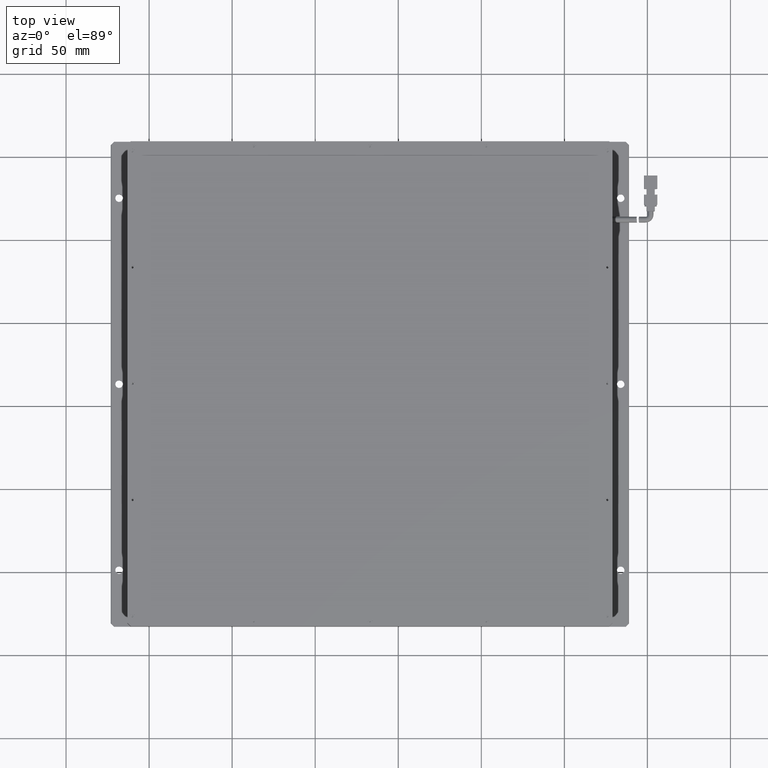
[diagram: clean part render]
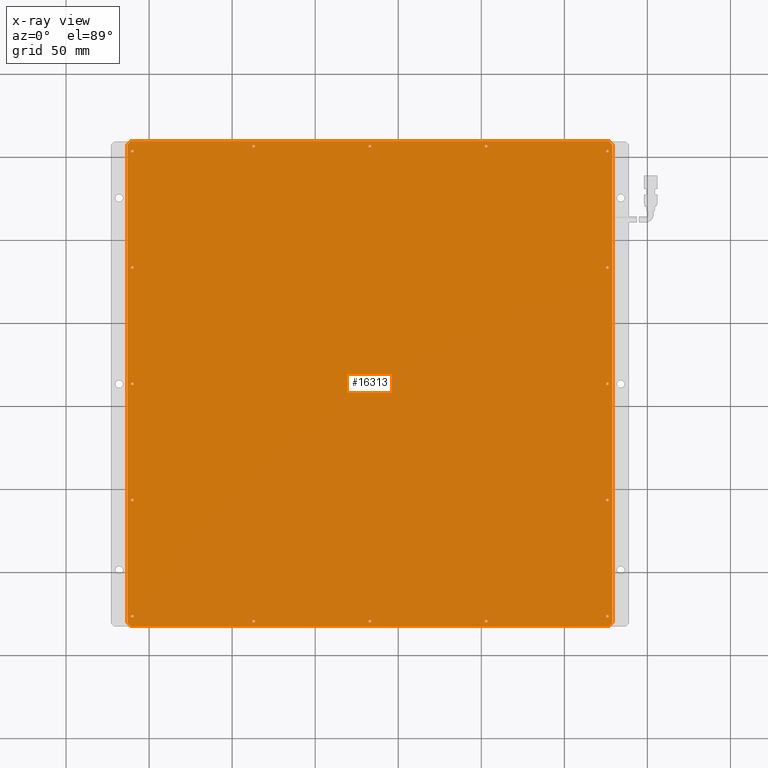
[diagram: x-ray — body ghosted, one internal face saturated and labeled with its STEP entity id]
A machine part, top view, then the same camera in x-ray: the body is ghosted and one INTERNAL B-rep face — a face not visible from any outside direction — is saturated and labeled: STEP entity #16313.
In plain terms, the highlighted planar face has unit normal (0, 0, 1).
Its self-contained STEP definition (entity closure, byte-faithful):
#26 = EDGE_LOOP ( 'NONE', ( #9681, #22525 ) ) ;
#43 = DIRECTION ( 'NONE',  ( -0.0000000000000000000, -0.0000000000000000000, -1.000000000000000000 ) ) ;
#68 = EDGE_CURVE ( 'NONE', #13888, #15676, #18069, .T. ) ;
#209 = LINE ( 'NONE', #16080, #4534 ) ;
#238 = VECTOR ( 'NONE', #13005, 1000.000000000000100 ) ;
#254 = DIRECTION ( 'NONE',  ( -0.0000000000000000000, -0.0000000000000000000, -1.000000000000000000 ) ) ;
#302 = CARTESIAN_POINT ( 'NONE',  ( 178.9193228736581300, -132.7301954307733900, 6.999999999971805700 ) ) ;
#313 = FACE_BOUND ( 'NONE', #9942, .T. ) ;
#330 = CIRCLE ( 'NONE', #23418, 0.7500000000000006700 ) ;
#439 = DIRECTION ( 'NONE',  ( -0.0000000000000000000, -0.0000000000000000000, -1.000000000000000000 ) ) ;
#550 = VECTOR ( 'NONE', #13134, 1000.000000000000000 ) ;
#608 = AXIS2_PLACEMENT_3D ( 'NONE', #10793, #7192, #12552 ) ;
#639 = ORIENTED_EDGE ( 'NONE', *, *, #8146, .F. ) ;
#769 = EDGE_LOOP ( 'NONE', ( #11752, #7807 ) ) ;
#825 = CARTESIAN_POINT ( 'NONE',  ( -109.3306771263418700, -56.73019543077345600, 6.999999999971803900 ) ) ;
#938 = EDGE_CURVE ( 'NONE', #4324, #15601, #13654, .T. ) ;
#1004 = EDGE_CURVE ( 'NONE', #16406, #22865, #18264, .T. ) ;
#1015 = VERTEX_POINT ( 'NONE', #16196 ) ;
#1020 = DIRECTION ( 'NONE',  ( 0.7071067811865328100, 0.7071067811865622300, 0.0000000000000000000 ) ) ;
#1049 = DIRECTION ( 'NONE',  ( 1.000000000000000000, 0.0000000000000000000, 0.0000000000000000000 ) ) ;
#1238 = CARTESIAN_POINT ( 'NONE',  ( -110.0806771263418700, -56.73019543077345600, 6.999999999971803900 ) ) ;
#1262 = ORIENTED_EDGE ( 'NONE', *, *, #20556, .F. ) ;
#1274 = DIRECTION ( 'NONE',  ( -0.0000000000000000000, -0.0000000000000000000, -1.000000000000000000 ) ) ;
#1481 = ORIENTED_EDGE ( 'NONE', *, *, #8666, .F. ) ;
#1625 = AXIS2_PLACEMENT_3D ( 'NONE', #18553, #11176, #1944 ) ;
#1819 = ORIENTED_EDGE ( 'NONE', *, *, #14648, .F. ) ;
#1944 = DIRECTION ( 'NONE',  ( 1.000000000000000000, 0.0000000000000000000, 0.0000000000000000000 ) ) ;
#1953 = DIRECTION ( 'NONE',  ( 1.000000000000000000, 0.0000000000000000000, 0.0000000000000000000 ) ) ;
#2010 = EDGE_CURVE ( 'NONE', #22823, #15531, #3099, .T. ) ;
#2023 = VERTEX_POINT ( 'NONE', #5647 ) ;
#2097 = CARTESIAN_POINT ( 'NONE',  ( 102.9193228736581000, -129.7301954307734500, 6.999999999971803900 ) ) ;
#2103 = AXIS2_PLACEMENT_3D ( 'NONE', #7669, #3665, #17119 ) ;
#2145 = VERTEX_POINT ( 'NONE', #22645 ) ;
#2367 = CARTESIAN_POINT ( 'NONE',  ( -111.0806771263418700, 159.2698045692265500, 6.999999999971805700 ) ) ;
#2406 = DIRECTION ( 'NONE',  ( -0.0000000000000000000, -0.0000000000000000000, -1.000000000000000000 ) ) ;
#2661 = VERTEX_POINT ( 'NONE', #3936 ) ;
#2725 = CIRCLE ( 'NONE', #5940, 0.7500000000000006700 ) ;
#2735 = ORIENTED_EDGE ( 'NONE', *, *, #11914, .F. ) ;
#2751 = CARTESIAN_POINT ( 'NONE',  ( 33.66932287365813200, 156.2698045692266100, 6.999999999971803900 ) ) ;
#2824 = CARTESIAN_POINT ( 'NONE',  ( 175.1693228736581600, 83.26980456922656500, 6.999999999971803900 ) ) ;
#2847 = EDGE_CURVE ( 'NONE', #14715, #20794, #19095, .T. ) ;
#2852 = LINE ( 'NONE', #18788, #238 ) ;
#2878 = EDGE_CURVE ( 'NONE', #8423, #17814, #2725, .T. ) ;
#2895 = DIRECTION ( 'NONE',  ( 1.000000000000000000, 0.0000000000000000000, 0.0000000000000000000 ) ) ;
#2919 = ORIENTED_EDGE ( 'NONE', *, *, #11312, .F. ) ;
#2942 = DIRECTION ( 'NONE',  ( 1.000000000000000000, 0.0000000000000000000, 0.0000000000000000000 ) ) ;
#3070 = ORIENTED_EDGE ( 'NONE', *, *, #10823, .F. ) ;
#3099 = CIRCLE ( 'NONE', #12815, 0.7500000000000284200 ) ;
#3140 = CARTESIAN_POINT ( 'NONE',  ( 176.6693228736581600, 153.2698045692265800, 6.999999999971803900 ) ) ;
#3208 = DIRECTION ( 'NONE',  ( 1.000000000000000000, 0.0000000000000000000, 0.0000000000000000000 ) ) ;
#3290 = ORIENTED_EDGE ( 'NONE', *, *, #1004, .F. ) ;
#3397 = VERTEX_POINT ( 'NONE', #18284 ) ;
#3427 = DIRECTION ( 'NONE',  ( 1.000000000000000000, 0.0000000000000000000, 0.0000000000000000000 ) ) ;
#3476 = FACE_BOUND ( 'NONE', #10006, .T. ) ;
#3513 = ORIENTED_EDGE ( 'NONE', *, *, #3989, .F. ) ;
#3593 = VERTEX_POINT ( 'NONE', #16896 ) ;
#3665 = DIRECTION ( 'NONE',  ( -0.0000000000000000000, -0.0000000000000000000, -1.000000000000000000 ) ) ;
#3909 = ORIENTED_EDGE ( 'NONE', *, *, #6841, .F. ) ;
#3916 = CARTESIAN_POINT ( 'NONE',  ( -36.33067712634193200, -129.7301954307734500, 6.999999999971803900 ) ) ;
#3936 = CARTESIAN_POINT ( 'NONE',  ( 178.9193228736581600, 157.2698045692265800, 6.999999999971805700 ) ) ;
#3941 = AXIS2_PLACEMENT_3D ( 'NONE', #15551, #4732, #6426 ) ;
#3972 = CARTESIAN_POINT ( 'NONE',  ( 102.9193228736581000, -129.7301954307734500, 6.999999999971803900 ) ) ;
#3989 = EDGE_CURVE ( 'NONE', #22865, #16406, #19323, .T. ) ;
#4075 = VERTEX_POINT ( 'NONE', #7739 ) ;
#4090 = ORIENTED_EDGE ( 'NONE', *, *, #14831, .F. ) ;
#4232 = AXIS2_PLACEMENT_3D ( 'NONE', #2097, #13144, #15146 ) ;
#4324 = VERTEX_POINT ( 'NONE', #9709 ) ;
#4383 = EDGE_LOOP ( 'NONE', ( #2735, #3909 ) ) ;
#4426 = CARTESIAN_POINT ( 'NONE',  ( 175.9193228736581300, -56.73019543077345600, 6.999999999971803900 ) ) ;
#4451 = CARTESIAN_POINT ( 'NONE',  ( 32.16932287365807500, -129.7301954307734500, 6.999999999971803900 ) ) ;
#4534 = VECTOR ( 'NONE', #19801, 1000.000000000000000 ) ;
#4574 = VERTEX_POINT ( 'NONE', #10450 ) ;
#4626 = AXIS2_PLACEMENT_3D ( 'NONE', #23271, #15784, #13855 ) ;
#4705 = EDGE_CURVE ( 'NONE', #21275, #23365, #19850, .T. ) ;
#4732 = DIRECTION ( 'NONE',  ( -0.0000000000000000000, -0.0000000000000000000, -1.000000000000000000 ) ) ;
#4766 = EDGE_LOOP ( 'NONE', ( #17138, #13455 ) ) ;
#4801 = CARTESIAN_POINT ( 'NONE',  ( -110.0806771263418700, 83.26980456922656500, 6.999999999971803900 ) ) ;
#4808 = ORIENTED_EDGE ( 'NONE', *, *, #8546, .F. ) ;
#4855 = VERTEX_POINT ( 'NONE', #20262 ) ;
#4858 = CARTESIAN_POINT ( 'NONE',  ( 102.1693228736581000, -129.7301954307734500, 6.999999999971803900 ) ) ;
#4946 = CIRCLE ( 'NONE', #4626, 0.7500000000000006700 ) ;
#4957 = ORIENTED_EDGE ( 'NONE', *, *, #7923, .F. ) ;
#5050 = EDGE_CURVE ( 'NONE', #6667, #2661, #13156, .T. ) ;
#5055 = DIRECTION ( 'NONE',  ( -0.0000000000000000000, -0.0000000000000000000, -1.000000000000000000 ) ) ;
#5192 = FACE_OUTER_BOUND ( 'NONE', #8081, .T. ) ;
#5347 = CARTESIAN_POINT ( 'NONE',  ( -37.83067712634193200, -129.7301954307734500, 6.999999999971803900 ) ) ;
#5374 = CARTESIAN_POINT ( 'NONE',  ( -110.8306771263418700, -126.7301954307734600, 6.999999999971803900 ) ) ;
#5526 = DIRECTION ( 'NONE',  ( 1.000000000000000000, 0.0000000000000000000, 0.0000000000000000000 ) ) ;
#5647 = CARTESIAN_POINT ( 'NONE',  ( 176.9193228736581600, -132.7301954307733600, 6.999999999971805700 ) ) ;
#5820 = DIRECTION ( 'NONE',  ( 1.000000000000000000, 0.0000000000000000000, 0.0000000000000000000 ) ) ;
#5856 = DIRECTION ( 'NONE',  ( 1.000000000000000000, 0.0000000000000000000, 0.0000000000000000000 ) ) ;
#5940 = AXIS2_PLACEMENT_3D ( 'NONE', #4801, #14006, #2895 ) ;
#6061 = ORIENTED_EDGE ( 'NONE', *, *, #13608, .F. ) ;
#6155 = AXIS2_PLACEMENT_3D ( 'NONE', #12254, #1274, #23258 ) ;
#6166 = CIRCLE ( 'NONE', #4232, 0.7500000000000006700 ) ;
#6196 = AXIS2_PLACEMENT_3D ( 'NONE', #7389, #9393, #16833 ) ;
#6366 = FACE_BOUND ( 'NONE', #4383, .T. ) ;
#6368 = VERTEX_POINT ( 'NONE', #7972 ) ;
#6426 = DIRECTION ( 'NONE',  ( 1.000000000000000000, 0.0000000000000000000, 0.0000000000000000000 ) ) ;
#6435 = ORIENTED_EDGE ( 'NONE', *, *, #15101, .F. ) ;
#6437 = CIRCLE ( 'NONE', #15623, 0.7500000000000006700 ) ;
#6469 = CARTESIAN_POINT ( 'NONE',  ( -113.0806771263418400, 159.2698045692266100, 6.999999999971805700 ) ) ;
#6528 = EDGE_CURVE ( 'NONE', #2145, #8929, #12449, .T. ) ;
#6667 = VERTEX_POINT ( 'NONE', #7323 ) ;
#6678 = CARTESIAN_POINT ( 'NONE',  ( -110.0806771263418700, 13.26980456922655100, 6.999999999971803900 ) ) ;
#6680 = AXIS2_PLACEMENT_3D ( 'NONE', #23645, #43, #3427 ) ;
#6841 = EDGE_CURVE ( 'NONE', #15398, #10173, #7316, .T. ) ;
#6848 = ORIENTED_EDGE ( 'NONE', *, *, #5050, .F. ) ;
#6947 = CARTESIAN_POINT ( 'NONE',  ( 33.66932287365807500, -129.7301954307734500, 6.999999999971803900 ) ) ;
#7049 = CARTESIAN_POINT ( 'NONE',  ( 176.6693228736581600, 13.26980456922655100, 6.999999999971803900 ) ) ;
#7080 = CIRCLE ( 'NONE', #8765, 0.7500000000000006700 ) ;
#7192 = DIRECTION ( 'NONE',  ( -0.0000000000000000000, -0.0000000000000000000, -1.000000000000000000 ) ) ;
#7316 = CIRCLE ( 'NONE', #8552, 0.7500000000000006700 ) ;
#7323 = CARTESIAN_POINT ( 'NONE',  ( 178.9193228736581000, -130.7301954307733900, 6.999999999971805700 ) ) ;
#7389 = CARTESIAN_POINT ( 'NONE',  ( 175.9193228736581300, -126.7301954307734600, 6.999999999971803900 ) ) ;
#7391 = DIRECTION ( 'NONE',  ( -0.0000000000000000000, -1.000000000000000000, -0.0000000000000000000 ) ) ;
#7418 = CIRCLE ( 'NONE', #22939, 0.7500000000000006700 ) ;
#7669 = CARTESIAN_POINT ( 'NONE',  ( -110.0806771263418700, 153.2698045692265800, 6.999999999971803900 ) ) ;
#7739 = CARTESIAN_POINT ( 'NONE',  ( 103.6693228736581000, -129.7301954307734500, 6.999999999971803900 ) ) ;
#7807 = ORIENTED_EDGE ( 'NONE', *, *, #11086, .F. ) ;
#7904 = EDGE_CURVE ( 'NONE', #20794, #14715, #18382, .T. ) ;
#7923 = EDGE_CURVE ( 'NONE', #9869, #12924, #9193, .T. ) ;
#7948 = DIRECTION ( 'NONE',  ( -0.0000000000000000000, -0.0000000000000000000, -1.000000000000000000 ) ) ;
#7972 = CARTESIAN_POINT ( 'NONE',  ( 175.1693228736581300, -126.7301954307734600, 6.999999999971803900 ) ) ;
#8029 = DIRECTION ( 'NONE',  ( -0.0000000000000000000, -0.0000000000000000000, -1.000000000000000000 ) ) ;
#8081 = EDGE_LOOP ( 'NONE', ( #4957, #4090, #18118, #6848, #4808, #1481, #14072, #6435 ) ) ;
#8146 = EDGE_CURVE ( 'NONE', #15601, #4324, #21033, .T. ) ;
#8372 = FACE_BOUND ( 'NONE', #10679, .T. ) ;
#8423 = VERTEX_POINT ( 'NONE', #21053 ) ;
#8495 = CARTESIAN_POINT ( 'NONE',  ( 102.1693228736581300, 156.2698045692266100, 6.999999999971803900 ) ) ;
#8498 = ORIENTED_EDGE ( 'NONE', *, *, #938, .F. ) ;
#8503 = DIRECTION ( 'NONE',  ( -0.0000000000000000000, -0.0000000000000000000, -1.000000000000000000 ) ) ;
#8546 = EDGE_CURVE ( 'NONE', #2023, #6667, #19795, .T. ) ;
#8552 = AXIS2_PLACEMENT_3D ( 'NONE', #10112, #7948, #21091 ) ;
#8561 = AXIS2_PLACEMENT_3D ( 'NONE', #9258, #14939, #14708 ) ;
#8604 = DIRECTION ( 'NONE',  ( 0.7071067811865376900, -0.7071067811865574500, 0.0000000000000000000 ) ) ;
#8605 = CARTESIAN_POINT ( 'NONE',  ( 175.9193228736581600, 13.26980456922655100, 6.999999999971803900 ) ) ;
#8666 = EDGE_CURVE ( 'NONE', #4574, #2023, #209, .T. ) ;
#8740 = CIRCLE ( 'NONE', #9759, 0.7500000000000006700 ) ;
#8765 = AXIS2_PLACEMENT_3D ( 'NONE', #14190, #5055, #3208 ) ;
#8816 = CIRCLE ( 'NONE', #18663, 0.7500000000000006700 ) ;
#8835 = DIRECTION ( 'NONE',  ( 1.000000000000000000, 0.0000000000000000000, 0.0000000000000000000 ) ) ;
#8929 = VERTEX_POINT ( 'NONE', #825 ) ;
#9067 = LINE ( 'NONE', #6469, #9633 ) ;
#9193 = LINE ( 'NONE', #2367, #19293 ) ;
#9201 = FACE_BOUND ( 'NONE', #769, .T. ) ;
#9208 = AXIS2_PLACEMENT_3D ( 'NONE', #17105, #15356, #13400 ) ;
#9258 = CARTESIAN_POINT ( 'NONE',  ( -113.0806771263418400, -132.7301954307733900, 6.999999999971805700 ) ) ;
#9393 = DIRECTION ( 'NONE',  ( -0.0000000000000000000, -0.0000000000000000000, -1.000000000000000000 ) ) ;
#9483 = ORIENTED_EDGE ( 'NONE', *, *, #20978, .F. ) ;
#9484 = CARTESIAN_POINT ( 'NONE',  ( -37.08067712634193200, -129.7301954307734500, 6.999999999971803900 ) ) ;
#9522 = DIRECTION ( 'NONE',  ( 1.000000000000000000, 0.0000000000000000000, 0.0000000000000000000 ) ) ;
#9633 = VECTOR ( 'NONE', #12230, 1000.000000000000000 ) ;
#9668 = AXIS2_PLACEMENT_3D ( 'NONE', #8605, #12227, #17750 ) ;
#9681 = ORIENTED_EDGE ( 'NONE', *, *, #2878, .F. ) ;
#9683 = CARTESIAN_POINT ( 'NONE',  ( 32.91932287365813200, 156.2698045692266100, 6.999999999971803900 ) ) ;
#9709 = CARTESIAN_POINT ( 'NONE',  ( 175.1693228736581600, 13.26980456922655100, 6.999999999971803900 ) ) ;
#9759 = AXIS2_PLACEMENT_3D ( 'NONE', #20161, #20340, #5526 ) ;
#9869 = VERTEX_POINT ( 'NONE', #22425 ) ;
#9915 = VERTEX_POINT ( 'NONE', #19091 ) ;
#9942 = EDGE_LOOP ( 'NONE', ( #639, #8498 ) ) ;
#9969 = CARTESIAN_POINT ( 'NONE',  ( 176.9193228736580700, 159.2698045692266400, 6.999999999971804800 ) ) ;
#9972 = CIRCLE ( 'NONE', #14047, 0.7500000000000006700 ) ;
#10006 = EDGE_LOOP ( 'NONE', ( #17210, #9483 ) ) ;
#10066 = CIRCLE ( 'NONE', #18191, 0.7500000000000006700 ) ;
#10075 = VERTEX_POINT ( 'NONE', #4858 ) ;
#10112 = CARTESIAN_POINT ( 'NONE',  ( 175.9193228736581600, 83.26980456922656500, 6.999999999971803900 ) ) ;
#10173 = VERTEX_POINT ( 'NONE', #17623 ) ;
#10178 = VERTEX_POINT ( 'NONE', #21537 ) ;
#10283 = CIRCLE ( 'NONE', #6155, 0.7500000000000006700 ) ;
#10314 = ORIENTED_EDGE ( 'NONE', *, *, #23194, .F. ) ;
#10450 = CARTESIAN_POINT ( 'NONE',  ( -111.0806771263418700, -132.7301954307733900, 6.999999999971805700 ) ) ;
#10484 = DIRECTION ( 'NONE',  ( 1.000000000000000000, 0.0000000000000000000, 0.0000000000000000000 ) ) ;
#10642 = VERTEX_POINT ( 'NONE', #9969 ) ;
#10646 = DIRECTION ( 'NONE',  ( 1.000000000000000000, 0.0000000000000000000, 0.0000000000000000000 ) ) ;
#10653 = FACE_BOUND ( 'NONE', #26, .T. ) ;
#10679 = EDGE_LOOP ( 'NONE', ( #19634, #23356 ) ) ;
#10737 = EDGE_CURVE ( 'NONE', #12049, #4574, #11132, .T. ) ;
#10747 = LINE ( 'NONE', #14591, #17352 ) ;
#10793 = CARTESIAN_POINT ( 'NONE',  ( 102.9193228736581500, 156.2698045692266100, 6.999999999971803900 ) ) ;
#10823 = EDGE_CURVE ( 'NONE', #1015, #19847, #9972, .T. ) ;
#11086 = EDGE_CURVE ( 'NONE', #6368, #3593, #8816, .T. ) ;
#11132 = LINE ( 'NONE', #19638, #22997 ) ;
#11176 = DIRECTION ( 'NONE',  ( -0.0000000000000000000, -0.0000000000000000000, -1.000000000000000000 ) ) ;
#11272 = EDGE_LOOP ( 'NONE', ( #20712, #17661 ) ) ;
#11312 = EDGE_CURVE ( 'NONE', #4855, #11550, #21202, .T. ) ;
#11429 = VERTEX_POINT ( 'NONE', #16928 ) ;
#11550 = VERTEX_POINT ( 'NONE', #23044 ) ;
#11584 = EDGE_LOOP ( 'NONE', ( #23375, #10314 ) ) ;
#11752 = ORIENTED_EDGE ( 'NONE', *, *, #18509, .F. ) ;
#11765 = DIRECTION ( 'NONE',  ( -0.0000000000000000000, -0.0000000000000000000, -1.000000000000000000 ) ) ;
#11914 = EDGE_CURVE ( 'NONE', #10173, #15398, #8740, .T. ) ;
#12011 = CARTESIAN_POINT ( 'NONE',  ( 176.9193228736581900, -132.7301954307733900, 6.999999999971805700 ) ) ;
#12048 = EDGE_CURVE ( 'NONE', #19960, #11429, #7418, .T. ) ;
#12049 = VERTEX_POINT ( 'NONE', #22527 ) ;
#12227 = DIRECTION ( 'NONE',  ( -0.0000000000000000000, -0.0000000000000000000, -1.000000000000000000 ) ) ;
#12230 = DIRECTION ( 'NONE',  ( -1.000000000000000000, -0.0000000000000000000, -0.0000000000000000000 ) ) ;
#12254 = CARTESIAN_POINT ( 'NONE',  ( -37.08067712634187500, 156.2698045692266100, 6.999999999971803900 ) ) ;
#12449 = CIRCLE ( 'NONE', #17146, 0.7500000000000006700 ) ;
#12479 = EDGE_LOOP ( 'NONE', ( #2919, #13863 ) ) ;
#12552 = DIRECTION ( 'NONE',  ( 1.000000000000000000, 0.0000000000000000000, 0.0000000000000000000 ) ) ;
#12815 = AXIS2_PLACEMENT_3D ( 'NONE', #13018, #254, #1953 ) ;
#12924 = VERTEX_POINT ( 'NONE', #18720 ) ;
#12943 = CARTESIAN_POINT ( 'NONE',  ( -37.08067712634193200, -129.7301954307734500, 6.999999999971803900 ) ) ;
#13005 = DIRECTION ( 'NONE',  ( -0.7071067811865474600, 0.7071067811865474600, 0.0000000000000000000 ) ) ;
#13018 = CARTESIAN_POINT ( 'NONE',  ( 175.9193228736581300, -56.73019543077345600, 6.999999999971803900 ) ) ;
#13134 = DIRECTION ( 'NONE',  ( 0.0000000000000000000, 1.000000000000000000, 0.0000000000000000000 ) ) ;
#13144 = DIRECTION ( 'NONE',  ( -0.0000000000000000000, -0.0000000000000000000, -1.000000000000000000 ) ) ;
#13156 = LINE ( 'NONE', #302, #550 ) ;
#13193 = ORIENTED_EDGE ( 'NONE', *, *, #7904, .F. ) ;
#13231 = VERTEX_POINT ( 'NONE', #3140 ) ;
#13263 = DIRECTION ( 'NONE',  ( 1.000000000000000000, 0.0000000000000000000, 0.0000000000000000000 ) ) ;
#13379 = EDGE_LOOP ( 'NONE', ( #6061, #19683 ) ) ;
#13400 = DIRECTION ( 'NONE',  ( 1.000000000000000000, 0.0000000000000000000, 0.0000000000000000000 ) ) ;
#13441 = CIRCLE ( 'NONE', #13754, 0.7500000000000006700 ) ;
#13455 = ORIENTED_EDGE ( 'NONE', *, *, #20693, .F. ) ;
#13608 = EDGE_CURVE ( 'NONE', #15531, #22823, #19761, .T. ) ;
#13654 = CIRCLE ( 'NONE', #14176, 0.7500000000000006700 ) ;
#13682 = AXIS2_PLACEMENT_3D ( 'NONE', #9484, #22465, #16843 ) ;
#13715 = CIRCLE ( 'NONE', #21557, 0.7500000000000006700 ) ;
#13735 = CARTESIAN_POINT ( 'NONE',  ( -109.3306771263418700, 153.2698045692265800, 6.999999999971803900 ) ) ;
#13744 = EDGE_CURVE ( 'NONE', #13231, #3397, #7080, .T. ) ;
#13754 = AXIS2_PLACEMENT_3D ( 'NONE', #17566, #19281, #1049 ) ;
#13809 = FACE_BOUND ( 'NONE', #23385, .T. ) ;
#13855 = DIRECTION ( 'NONE',  ( 1.000000000000000000, 0.0000000000000000000, 0.0000000000000000000 ) ) ;
#13863 = ORIENTED_EDGE ( 'NONE', *, *, #16965, .F. ) ;
#13888 = VERTEX_POINT ( 'NONE', #5347 ) ;
#14006 = DIRECTION ( 'NONE',  ( -0.0000000000000000000, -0.0000000000000000000, -1.000000000000000000 ) ) ;
#14020 = DIRECTION ( 'NONE',  ( -0.0000000000000000000, -0.0000000000000000000, -1.000000000000000000 ) ) ;
#14038 = DIRECTION ( 'NONE',  ( 1.000000000000000000, 0.0000000000000000000, 0.0000000000000000000 ) ) ;
#14047 = AXIS2_PLACEMENT_3D ( 'NONE', #20484, #22340, #9522 ) ;
#14062 = EDGE_CURVE ( 'NONE', #17814, #8423, #17385, .T. ) ;
#14072 = ORIENTED_EDGE ( 'NONE', *, *, #10737, .F. ) ;
#14176 = AXIS2_PLACEMENT_3D ( 'NONE', #14324, #8503, #10646 ) ;
#14190 = CARTESIAN_POINT ( 'NONE',  ( 175.9193228736581600, 153.2698045692265800, 6.999999999971803900 ) ) ;
#14294 = AXIS2_PLACEMENT_3D ( 'NONE', #23752, #18120, #8835 ) ;
#14299 = EDGE_LOOP ( 'NONE', ( #13193, #23488 ) ) ;
#14324 = CARTESIAN_POINT ( 'NONE',  ( 175.9193228736581600, 13.26980456922655100, 6.999999999971803900 ) ) ;
#14371 = FACE_BOUND ( 'NONE', #12479, .T. ) ;
#14591 = CARTESIAN_POINT ( 'NONE',  ( -113.0806771263418400, -132.7301954307733900, 6.999999999971805700 ) ) ;
#14648 = EDGE_CURVE ( 'NONE', #15676, #13888, #17019, .T. ) ;
#14708 = DIRECTION ( 'NONE',  ( 1.000000000000000000, 0.0000000000000000000, 0.0000000000000000000 ) ) ;
#14715 = VERTEX_POINT ( 'NONE', #4451 ) ;
#14786 = DIRECTION ( 'NONE',  ( 1.000000000000000000, 0.0000000000000000000, 0.0000000000000000000 ) ) ;
#14831 = EDGE_CURVE ( 'NONE', #10642, #9869, #9067, .T. ) ;
#14874 = ORIENTED_EDGE ( 'NONE', *, *, #12048, .F. ) ;
#14939 = DIRECTION ( 'NONE',  ( 0.0000000000000000000, 0.0000000000000000000, 1.000000000000000000 ) ) ;
#15060 = DIRECTION ( 'NONE',  ( -0.0000000000000000000, -0.0000000000000000000, -1.000000000000000000 ) ) ;
#15101 = EDGE_CURVE ( 'NONE', #12924, #12049, #10747, .T. ) ;
#15144 = EDGE_CURVE ( 'NONE', #4075, #10075, #6166, .T. ) ;
#15146 = DIRECTION ( 'NONE',  ( 1.000000000000000000, 0.0000000000000000000, 0.0000000000000000000 ) ) ;
#15149 = VECTOR ( 'NONE', #1020, 1000.000000000000000 ) ;
#15307 = DIRECTION ( 'NONE',  ( 1.000000000000000000, 0.0000000000000000000, 0.0000000000000000000 ) ) ;
#15356 = DIRECTION ( 'NONE',  ( -0.0000000000000000000, -0.0000000000000000000, -1.000000000000000000 ) ) ;
#15398 = VERTEX_POINT ( 'NONE', #2824 ) ;
#15531 = VERTEX_POINT ( 'NONE', #20061 ) ;
#15551 = CARTESIAN_POINT ( 'NONE',  ( 32.91932287365807500, -129.7301954307734500, 6.999999999971803900 ) ) ;
#15564 = DIRECTION ( 'NONE',  ( 1.000000000000000000, 0.0000000000000000000, 0.0000000000000000000 ) ) ;
#15598 = CARTESIAN_POINT ( 'NONE',  ( 175.9193228736581300, -126.7301954307734600, 6.999999999971803900 ) ) ;
#15601 = VERTEX_POINT ( 'NONE', #7049 ) ;
#15623 = AXIS2_PLACEMENT_3D ( 'NONE', #19243, #11765, #17388 ) ;
#15676 = VERTEX_POINT ( 'NONE', #3916 ) ;
#15784 = DIRECTION ( 'NONE',  ( -0.0000000000000000000, -0.0000000000000000000, -1.000000000000000000 ) ) ;
#15807 = DIRECTION ( 'NONE',  ( 1.000000000000000000, 0.0000000000000000000, 0.0000000000000000000 ) ) ;
#15893 = CIRCLE ( 'NONE', #2103, 0.7500000000000006700 ) ;
#16080 = CARTESIAN_POINT ( 'NONE',  ( -113.0806771263418400, -132.7301954307733900, 6.999999999971805700 ) ) ;
#16180 = CARTESIAN_POINT ( 'NONE',  ( -110.8306771263418700, 83.26980456922656500, 6.999999999971803900 ) ) ;
#16196 = CARTESIAN_POINT ( 'NONE',  ( -109.3306771263418700, -126.7301954307734600, 6.999999999971803900 ) ) ;
#16313 = ADVANCED_FACE ( 'NONE', ( #5192, #19585, #6366, #313, #19300, #9201, #23090, #10653, #14371, #8372, #23650, #18697, #13809, #18108, #3476, #22493, #17537 ), #20371, .F. ) ;
#16406 = VERTEX_POINT ( 'NONE', #17264 ) ;
#16792 = EDGE_CURVE ( 'NONE', #2661, #10642, #2852, .T. ) ;
#16833 = DIRECTION ( 'NONE',  ( 1.000000000000000000, 0.0000000000000000000, 0.0000000000000000000 ) ) ;
#16843 = DIRECTION ( 'NONE',  ( 1.000000000000000000, 0.0000000000000000000, 0.0000000000000000000 ) ) ;
#16896 = CARTESIAN_POINT ( 'NONE',  ( 176.6693228736581300, -126.7301954307734600, 6.999999999971803900 ) ) ;
#16928 = CARTESIAN_POINT ( 'NONE',  ( 32.16932287365813200, 156.2698045692266100, 6.999999999971803900 ) ) ;
#16965 = EDGE_CURVE ( 'NONE', #11550, #4855, #13715, .T. ) ;
#17019 = CIRCLE ( 'NONE', #17727, 0.7500000000000006700 ) ;
#17105 = CARTESIAN_POINT ( 'NONE',  ( 32.91932287365807500, -129.7301954307734500, 6.999999999971803900 ) ) ;
#17113 = CARTESIAN_POINT ( 'NONE',  ( 32.91932287365813200, 156.2698045692266100, 6.999999999971803900 ) ) ;
#17119 = DIRECTION ( 'NONE',  ( 1.000000000000000000, 0.0000000000000000000, 0.0000000000000000000 ) ) ;
#17138 = ORIENTED_EDGE ( 'NONE', *, *, #17700, .F. ) ;
#17146 = AXIS2_PLACEMENT_3D ( 'NONE', #1238, #17426, #14038 ) ;
#17210 = ORIENTED_EDGE ( 'NONE', *, *, #15144, .F. ) ;
#17232 = ORIENTED_EDGE ( 'NONE', *, *, #68, .F. ) ;
#17264 = CARTESIAN_POINT ( 'NONE',  ( 103.6693228736581500, 156.2698045692266100, 6.999999999971803900 ) ) ;
#17352 = VECTOR ( 'NONE', #7391, 1000.000000000000000 ) ;
#17385 = CIRCLE ( 'NONE', #18451, 0.7500000000000006700 ) ;
#17388 = DIRECTION ( 'NONE',  ( 1.000000000000000000, 0.0000000000000000000, 0.0000000000000000000 ) ) ;
#17426 = DIRECTION ( 'NONE',  ( -0.0000000000000000000, -0.0000000000000000000, -1.000000000000000000 ) ) ;
#17537 = FACE_BOUND ( 'NONE', #19660, .T. ) ;
#17566 = CARTESIAN_POINT ( 'NONE',  ( 175.9193228736581600, 153.2698045692265800, 6.999999999971803900 ) ) ;
#17623 = CARTESIAN_POINT ( 'NONE',  ( 176.6693228736581600, 83.26980456922656500, 6.999999999971803900 ) ) ;
#17658 = CIRCLE ( 'NONE', #6196, 0.7500000000000006700 ) ;
#17661 = ORIENTED_EDGE ( 'NONE', *, *, #20104, .F. ) ;
#17700 = EDGE_CURVE ( 'NONE', #9915, #10178, #10283, .T. ) ;
#17727 = AXIS2_PLACEMENT_3D ( 'NONE', #12943, #439, #14786 ) ;
#17750 = DIRECTION ( 'NONE',  ( 1.000000000000000000, 0.0000000000000000000, 0.0000000000000000000 ) ) ;
#17814 = VERTEX_POINT ( 'NONE', #16180 ) ;
#17880 = ORIENTED_EDGE ( 'NONE', *, *, #19329, .F. ) ;
#18069 = CIRCLE ( 'NONE', #13682, 0.7500000000000006700 ) ;
#18108 = FACE_BOUND ( 'NONE', #4766, .T. ) ;
#18118 = ORIENTED_EDGE ( 'NONE', *, *, #16792, .F. ) ;
#18120 = DIRECTION ( 'NONE',  ( -0.0000000000000000000, -0.0000000000000000000, -1.000000000000000000 ) ) ;
#18191 = AXIS2_PLACEMENT_3D ( 'NONE', #17113, #19071, #13263 ) ;
#18264 = CIRCLE ( 'NONE', #6680, 0.7500000000000006700 ) ;
#18284 = CARTESIAN_POINT ( 'NONE',  ( 175.1693228736581600, 153.2698045692265800, 6.999999999971803900 ) ) ;
#18382 = CIRCLE ( 'NONE', #9208, 0.7500000000000006700 ) ;
#18406 = DIRECTION ( 'NONE',  ( -0.0000000000000000000, -0.0000000000000000000, -1.000000000000000000 ) ) ;
#18451 = AXIS2_PLACEMENT_3D ( 'NONE', #20827, #2406, #15307 ) ;
#18509 = EDGE_CURVE ( 'NONE', #3593, #6368, #17658, .T. ) ;
#18553 = CARTESIAN_POINT ( 'NONE',  ( -110.0806771263418700, 13.26980456922655100, 6.999999999971803900 ) ) ;
#18663 = AXIS2_PLACEMENT_3D ( 'NONE', #15598, #21131, #2942 ) ;
#18697 = FACE_BOUND ( 'NONE', #22188, .T. ) ;
#18720 = CARTESIAN_POINT ( 'NONE',  ( -113.0806771263418100, 157.2698045692265800, 6.999999999971804800 ) ) ;
#18788 = CARTESIAN_POINT ( 'NONE',  ( 178.9193228736581300, 157.2698045692265500, 6.999999999971805700 ) ) ;
#19071 = DIRECTION ( 'NONE',  ( -0.0000000000000000000, -0.0000000000000000000, -1.000000000000000000 ) ) ;
#19091 = CARTESIAN_POINT ( 'NONE',  ( -36.33067712634187500, 156.2698045692266100, 6.999999999971803900 ) ) ;
#19095 = CIRCLE ( 'NONE', #3941, 0.7500000000000006700 ) ;
#19243 = CARTESIAN_POINT ( 'NONE',  ( -110.0806771263418700, -126.7301954307734600, 6.999999999971803900 ) ) ;
#19281 = DIRECTION ( 'NONE',  ( -0.0000000000000000000, -0.0000000000000000000, -1.000000000000000000 ) ) ;
#19293 = VECTOR ( 'NONE', #22741, 1000.000000000000000 ) ;
#19300 = FACE_BOUND ( 'NONE', #13379, .T. ) ;
#19323 = CIRCLE ( 'NONE', #608, 0.7500000000000006700 ) ;
#19329 = EDGE_CURVE ( 'NONE', #11429, #19960, #10066, .T. ) ;
#19427 = DIRECTION ( 'NONE',  ( -0.0000000000000000000, -0.0000000000000000000, -1.000000000000000000 ) ) ;
#19585 = FACE_BOUND ( 'NONE', #11272, .T. ) ;
#19634 = ORIENTED_EDGE ( 'NONE', *, *, #22908, .F. ) ;
#19638 = CARTESIAN_POINT ( 'NONE',  ( -113.0806771263418400, -130.7301954307733600, 6.999999999971805700 ) ) ;
#19652 = CIRCLE ( 'NONE', #23544, 0.7500000000000006700 ) ;
#19660 = EDGE_LOOP ( 'NONE', ( #1819, #17232 ) ) ;
#19669 = CARTESIAN_POINT ( 'NONE',  ( -37.08067712634187500, 156.2698045692266100, 6.999999999971803900 ) ) ;
#19683 = ORIENTED_EDGE ( 'NONE', *, *, #2010, .F. ) ;
#19761 = CIRCLE ( 'NONE', #21439, 0.7500000000000284200 ) ;
#19795 = LINE ( 'NONE', #12011, #15149 ) ;
#19801 = DIRECTION ( 'NONE',  ( 1.000000000000000000, 0.0000000000000000000, 0.0000000000000000000 ) ) ;
#19847 = VERTEX_POINT ( 'NONE', #5374 ) ;
#19850 = CIRCLE ( 'NONE', #14294, 0.7500000000000006700 ) ;
#19960 = VERTEX_POINT ( 'NONE', #2751 ) ;
#20061 = CARTESIAN_POINT ( 'NONE',  ( 176.6693228736581600, -56.73019543077345600, 6.999999999971803900 ) ) ;
#20104 = EDGE_CURVE ( 'NONE', #3397, #13231, #13441, .T. ) ;
#20161 = CARTESIAN_POINT ( 'NONE',  ( 175.9193228736581600, 83.26980456922656500, 6.999999999971803900 ) ) ;
#20262 = CARTESIAN_POINT ( 'NONE',  ( -109.3306771263418700, 13.26980456922655100, 6.999999999971803900 ) ) ;
#20340 = DIRECTION ( 'NONE',  ( -0.0000000000000000000, -0.0000000000000000000, -1.000000000000000000 ) ) ;
#20371 = PLANE ( 'NONE',  #8561 ) ;
#20484 = CARTESIAN_POINT ( 'NONE',  ( -110.0806771263418700, -126.7301954307734600, 6.999999999971803900 ) ) ;
#20556 = EDGE_CURVE ( 'NONE', #19847, #1015, #6437, .T. ) ;
#20693 = EDGE_CURVE ( 'NONE', #10178, #9915, #19652, .T. ) ;
#20712 = ORIENTED_EDGE ( 'NONE', *, *, #13744, .F. ) ;
#20794 = VERTEX_POINT ( 'NONE', #6947 ) ;
#20827 = CARTESIAN_POINT ( 'NONE',  ( -110.0806771263418700, 83.26980456922656500, 6.999999999971803900 ) ) ;
#20978 = EDGE_CURVE ( 'NONE', #10075, #4075, #330, .T. ) ;
#21033 = CIRCLE ( 'NONE', #9668, 0.7500000000000006700 ) ;
#21043 = CARTESIAN_POINT ( 'NONE',  ( -110.8306771263418700, 153.2698045692265800, 6.999999999971803900 ) ) ;
#21053 = CARTESIAN_POINT ( 'NONE',  ( -109.3306771263418700, 83.26980456922656500, 6.999999999971803900 ) ) ;
#21091 = DIRECTION ( 'NONE',  ( 1.000000000000000000, 0.0000000000000000000, 0.0000000000000000000 ) ) ;
#21131 = DIRECTION ( 'NONE',  ( -0.0000000000000000000, -0.0000000000000000000, -1.000000000000000000 ) ) ;
#21202 = CIRCLE ( 'NONE', #1625, 0.7500000000000006700 ) ;
#21225 = CARTESIAN_POINT ( 'NONE',  ( 175.1693228736581000, -56.73019543077345600, 6.999999999971803900 ) ) ;
#21275 = VERTEX_POINT ( 'NONE', #13735 ) ;
#21439 = AXIS2_PLACEMENT_3D ( 'NONE', #4426, #8029, #15564 ) ;
#21537 = CARTESIAN_POINT ( 'NONE',  ( -37.83067712634187500, 156.2698045692266100, 6.999999999971803900 ) ) ;
#21557 = AXIS2_PLACEMENT_3D ( 'NONE', #6678, #14020, #15807 ) ;
#22188 = EDGE_LOOP ( 'NONE', ( #3290, #3513 ) ) ;
#22340 = DIRECTION ( 'NONE',  ( -0.0000000000000000000, -0.0000000000000000000, -1.000000000000000000 ) ) ;
#22425 = CARTESIAN_POINT ( 'NONE',  ( -111.0806771263417500, 159.2698045692265800, 6.999999999971805700 ) ) ;
#22465 = DIRECTION ( 'NONE',  ( -0.0000000000000000000, -0.0000000000000000000, -1.000000000000000000 ) ) ;
#22493 = FACE_BOUND ( 'NONE', #14299, .T. ) ;
#22525 = ORIENTED_EDGE ( 'NONE', *, *, #14062, .F. ) ;
#22527 = CARTESIAN_POINT ( 'NONE',  ( -113.0806771263418700, -130.7301954307733600, 6.999999999971805700 ) ) ;
#22645 = CARTESIAN_POINT ( 'NONE',  ( -110.8306771263418700, -56.73019543077345600, 6.999999999971803900 ) ) ;
#22740 = EDGE_LOOP ( 'NONE', ( #3070, #1262 ) ) ;
#22741 = DIRECTION ( 'NONE',  ( -0.7071067811865426900, -0.7071067811865524600, 0.0000000000000000000 ) ) ;
#22823 = VERTEX_POINT ( 'NONE', #21225 ) ;
#22865 = VERTEX_POINT ( 'NONE', #8495 ) ;
#22908 = EDGE_CURVE ( 'NONE', #8929, #2145, #4946, .T. ) ;
#22939 = AXIS2_PLACEMENT_3D ( 'NONE', #9683, #15060, #5856 ) ;
#22997 = VECTOR ( 'NONE', #8604, 999.9999999999998900 ) ;
#23044 = CARTESIAN_POINT ( 'NONE',  ( -110.8306771263418700, 13.26980456922655100, 6.999999999971803900 ) ) ;
#23090 = FACE_BOUND ( 'NONE', #11584, .T. ) ;
#23194 = EDGE_CURVE ( 'NONE', #23365, #21275, #15893, .T. ) ;
#23258 = DIRECTION ( 'NONE',  ( 1.000000000000000000, 0.0000000000000000000, 0.0000000000000000000 ) ) ;
#23271 = CARTESIAN_POINT ( 'NONE',  ( -110.0806771263418700, -56.73019543077345600, 6.999999999971803900 ) ) ;
#23356 = ORIENTED_EDGE ( 'NONE', *, *, #6528, .F. ) ;
#23365 = VERTEX_POINT ( 'NONE', #21043 ) ;
#23375 = ORIENTED_EDGE ( 'NONE', *, *, #4705, .F. ) ;
#23385 = EDGE_LOOP ( 'NONE', ( #14874, #17880 ) ) ;
#23418 = AXIS2_PLACEMENT_3D ( 'NONE', #3972, #18406, #5820 ) ;
#23488 = ORIENTED_EDGE ( 'NONE', *, *, #2847, .F. ) ;
#23544 = AXIS2_PLACEMENT_3D ( 'NONE', #19669, #19427, #10484 ) ;
#23645 = CARTESIAN_POINT ( 'NONE',  ( 102.9193228736581500, 156.2698045692266100, 6.999999999971803900 ) ) ;
#23650 = FACE_BOUND ( 'NONE', #22740, .T. ) ;
#23752 = CARTESIAN_POINT ( 'NONE',  ( -110.0806771263418700, 153.2698045692265800, 6.999999999971803900 ) ) ;